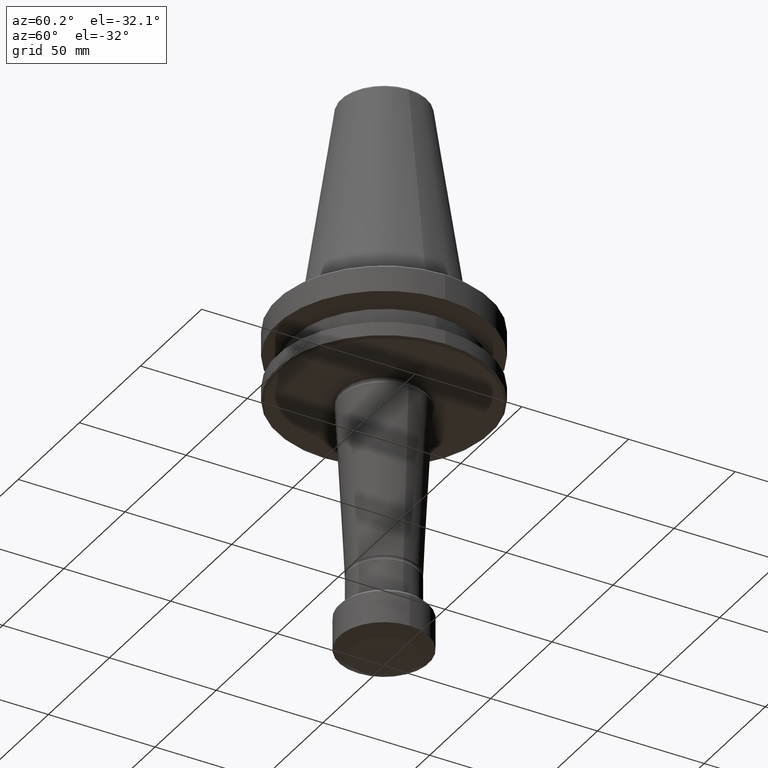
[diagram: clean part render]
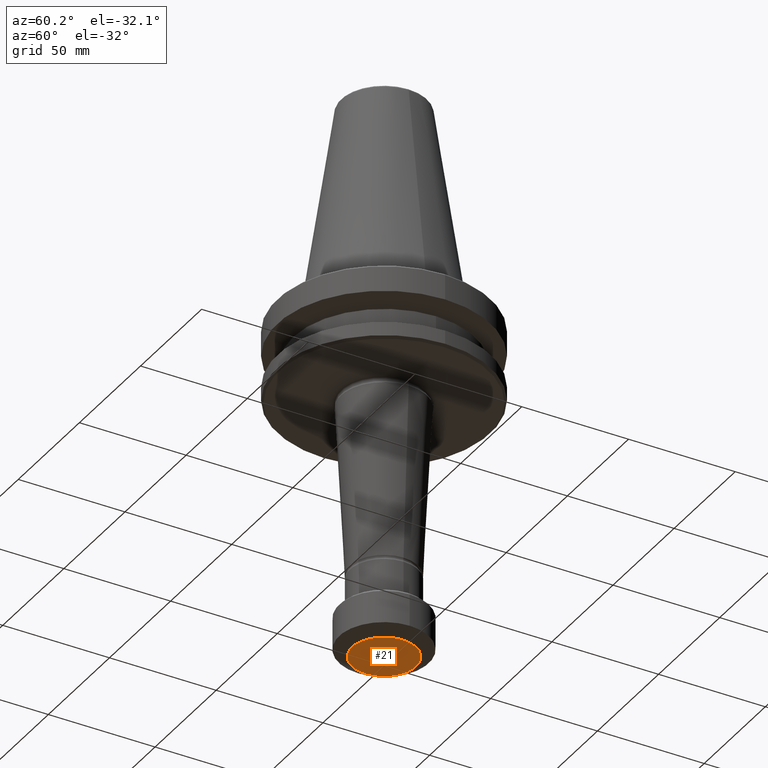
[diagram: same view with one face highlighted and labeled with its STEP entity id]
A machine part, auxiliary view. The second image highlights one B-rep face of the part: STEP entity #21.
In plain terms, the highlighted planar face has unit normal (0, -0, 1).
Its self-contained STEP definition (entity closure, byte-faithful):
#21 = ADVANCED_FACE ( 'NONE', ( #814 ), #985, .F. ) ;
#45 = CARTESIAN_POINT ( 'NONE',  ( 0.0000000000000000000, 0.0000000000000000000, -159.9959493605086000 ) ) ;
#245 = EDGE_CURVE ( 'NONE', #721, #1030, #630, .T. ) ;
#272 = DIRECTION ( 'NONE',  ( 0.0000000000000000000, -0.0000000000000000000, 1.000000000000000000 ) ) ;
#437 = DIRECTION ( 'NONE',  ( -0.0000000000000000000, -0.0000000000000000000, 1.000000000000000000 ) ) ;
#453 = DIRECTION ( 'NONE',  ( 1.000000000000000000, 0.0000000000000000000, 0.0000000000000000000 ) ) ;
#464 = DIRECTION ( 'NONE',  ( -0.0000000000000000000, -0.0000000000000000000, 1.000000000000000000 ) ) ;
#630 = CIRCLE ( 'NONE', #675, 15.00000000000000000 ) ;
#645 = DIRECTION ( 'NONE',  ( 1.000000000000000000, 0.0000000000000000000, 0.0000000000000000000 ) ) ;
#675 = AXIS2_PLACEMENT_3D ( 'NONE', #45, #464, #993 ) ;
#721 = VERTEX_POINT ( 'NONE', #853 ) ;
#775 = ORIENTED_EDGE ( 'NONE', *, *, #245, .F. ) ;
#797 = CIRCLE ( 'NONE', #1366, 15.00000000000000000 ) ;
#814 = FACE_OUTER_BOUND ( 'NONE', #1056, .T. ) ;
#853 = CARTESIAN_POINT ( 'NONE',  ( -15.00000000000000000, 2.204364238465236200E-015, -159.9959493605086000 ) ) ;
#872 = CARTESIAN_POINT ( 'NONE',  ( 0.0000000000000000000, 0.0000000000000000000, -159.9959493605086000 ) ) ;
#882 = ORIENTED_EDGE ( 'NONE', *, *, #933, .F. ) ;
#933 = EDGE_CURVE ( 'NONE', #1030, #721, #797, .T. ) ;
#965 = CARTESIAN_POINT ( 'NONE',  ( 15.00000000000000000, 0.0000000000000000000, -159.9959493605086000 ) ) ;
#985 = PLANE ( 'NONE',  #1213 ) ;
#993 = DIRECTION ( 'NONE',  ( 1.000000000000000000, 0.0000000000000000000, 0.0000000000000000000 ) ) ;
#1030 = VERTEX_POINT ( 'NONE', #965 ) ;
#1056 = EDGE_LOOP ( 'NONE', ( #882, #775 ) ) ;
#1213 = AXIS2_PLACEMENT_3D ( 'NONE', #872, #272, #453 ) ;
#1248 = CARTESIAN_POINT ( 'NONE',  ( 0.0000000000000000000, 0.0000000000000000000, -159.9959493605086000 ) ) ;
#1366 = AXIS2_PLACEMENT_3D ( 'NONE', #1248, #437, #645 ) ;